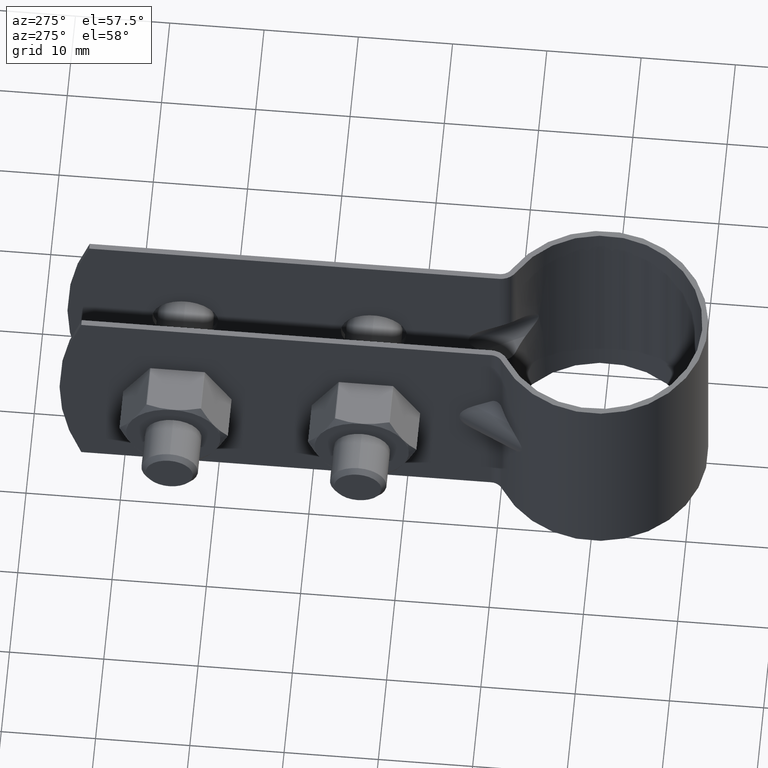
[diagram: clean part render]
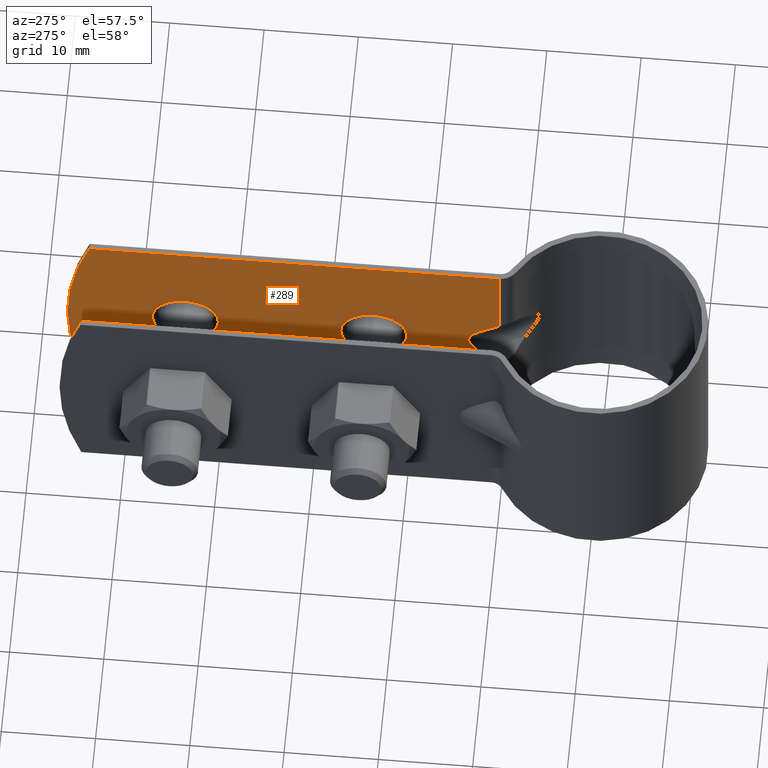
[diagram: same view with one face highlighted and labeled with its STEP entity id]
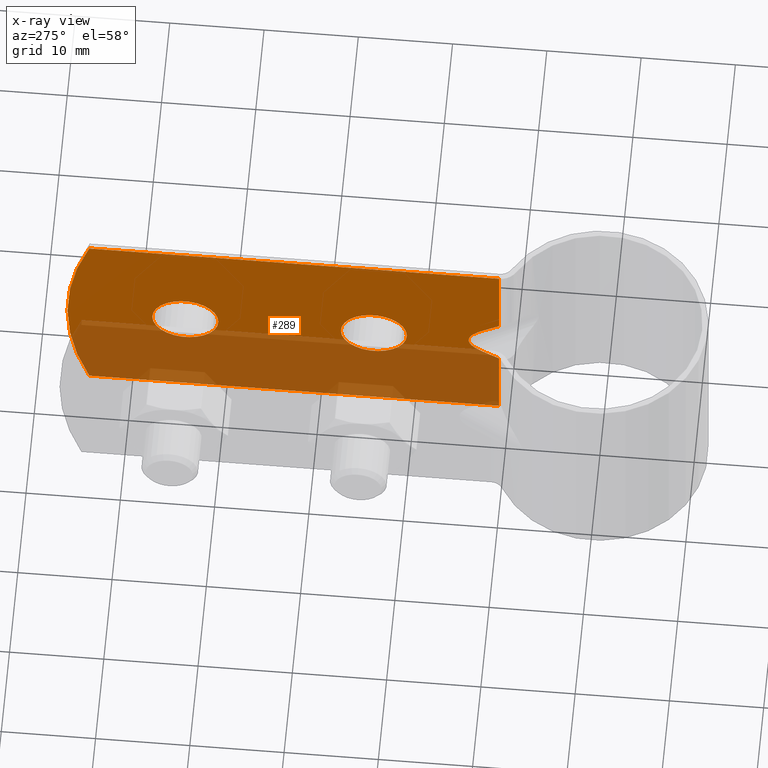
[diagram: x-ray of the same camera — body ghosted, the highlighted face saturated]
A machine part, auxiliary view. The second image highlights one B-rep face of the part: STEP entity #289.
The next image is the same camera in x-ray: the body ghosted, the highlighted face saturated — about 45% of this face is hidden behind the body in this view.
In plain terms, the highlighted planar face has unit normal (1, -0, 0).
Its self-contained STEP definition (entity closure, byte-faithful):
#289 = ADVANCED_FACE( '', ( #422, #423, #424 ), #425, .F. );
#422 = FACE_OUTER_BOUND( '', #654, .T. );
#423 = FACE_BOUND( '', #655, .T. );
#424 = FACE_BOUND( '', #656, .T. );
#425 = PLANE( '', #657 );
#654 = EDGE_LOOP( '', ( #1008, #1009, #1010, #1011, #1012, #1013, #1014, #1015 ) );
#655 = EDGE_LOOP( '', ( #1016 ) );
#656 = EDGE_LOOP( '', ( #1017 ) );
#657 = AXIS2_PLACEMENT_3D( '', #1018, #1019, #1020 );
#1008 = ORIENTED_EDGE( '', *, *, #1694, .T. );
#1009 = ORIENTED_EDGE( '', *, *, #1695, .T. );
#1010 = ORIENTED_EDGE( '', *, *, #1686, .F. );
#1011 = ORIENTED_EDGE( '', *, *, #1630, .F. );
#1012 = ORIENTED_EDGE( '', *, *, #1617, .T. );
#1013 = ORIENTED_EDGE( '', *, *, #1660, .F. );
#1014 = ORIENTED_EDGE( '', *, *, #1662, .F. );
#1015 = ORIENTED_EDGE( '', *, *, #1657, .F. );
#1016 = ORIENTED_EDGE( '', *, *, #1676, .F. );
#1017 = ORIENTED_EDGE( '', *, *, #1680, .F. );
#1018 = CARTESIAN_POINT( '', ( 4.50000000000000, 11.0847868721054, -12.5000000000000 ) );
#1019 = DIRECTION( '', ( 1.00000000000000, -6.06692130572647E-017, 0.000000000000000 ) );
#1020 = DIRECTION( '', ( 6.06692130572647E-017, 1.00000000000000, 0.000000000000000 ) );
#1617 = EDGE_CURVE( '', #1857, #1854, #1858, .T. );
#1630 = EDGE_CURVE( '', #1857, #1863, #1882, .T. );
#1657 = EDGE_CURVE( '', #1928, #1924, #1930, .T. );
#1660 = EDGE_CURVE( '', #1933, #1854, #1935, .T. );
#1662 = EDGE_CURVE( '', #1924, #1933, #1937, .F. );
#1676 = EDGE_CURVE( '', #1962, #1962, #1963, .F. );
#1680 = EDGE_CURVE( '', #1970, #1970, #1971, .F. );
#1686 = EDGE_CURVE( '', #1863, #1977, #1981, .T. );
#1694 = EDGE_CURVE( '', #1928, #1992, #1993, .T. );
#1695 = EDGE_CURVE( '', #1992, #1977, #1994, .T. );
#1854 = VERTEX_POINT( '', #2254 );
#1857 = VERTEX_POINT( '', #2257 );
#1858 = LINE( '', #2258, #2259 );
#1863 = VERTEX_POINT( '', #2265 );
#1882 = LINE( '', #2289, #2290 );
#1924 = VERTEX_POINT( '', #2389 );
#1928 = VERTEX_POINT( '', #2394 );
#1930 = LINE( '', #2396, #2397 );
#1933 = VERTEX_POINT( '', #2400 );
#1935 = LINE( '', #2403, #2404 );
#1937 = ELLIPSE( '', #2429, 7.48914349958990, 3.40000000000000 );
#1962 = VERTEX_POINT( '', #2481 );
#1963 = CIRCLE( '', #2482, 3.50000000000000 );
#1970 = VERTEX_POINT( '', #2489 );
#1971 = CIRCLE( '', #2490, 3.50000000000000 );
#1977 = VERTEX_POINT( '', #2497 );
#1981 = CIRCLE( '', #2502, 35.0000000000000 );
#1992 = VERTEX_POINT( '', #2519 );
#1993 = LINE( '', #2520, #2521 );
#1994 = LINE( '', #2522, #2523 );
#2254 = CARTESIAN_POINT( '', ( 4.50000000000000, 11.0847868721054, -3.16664983038421 ) );
#2257 = CARTESIAN_POINT( '', ( 4.50000000000000, 11.0847868721054, -12.5000000000000 ) );
#2258 = CARTESIAN_POINT( '', ( 4.50000000000000, 11.0847868721054, -12.5000000000000 ) );
#2259 = VECTOR( '', #2985, 1000.00000000000 );
#2265 = CARTESIAN_POINT( '', ( 4.50000000000000, 54.5645582907869, -12.5000000000000 ) );
#2289 = CARTESIAN_POINT( '', ( 4.50000000000000, 11.0847868721054, -12.5000000000000 ) );
#2290 = VECTOR( '', #3010, 1000.00000000000 );
#2389 = CARTESIAN_POINT( '', ( 4.50000000000000, 12.9610275233696, 1.95015988359351 ) );
#2394 = CARTESIAN_POINT( '', ( 4.50000000000000, 11.0847868721054, 3.16664983038413 ) );
#2396 = CARTESIAN_POINT( '', ( 4.50000000000000, 6.53016390564073, 6.11971080707302 ) );
#2397 = VECTOR( '', #3059, 1000.00000000000 );
#2400 = CARTESIAN_POINT( '', ( 4.50000000000000, 12.9610275233696, -1.95015988359362 ) );
#2403 = CARTESIAN_POINT( '', ( 4.50000000000000, 3.71900632928164, -7.94236875246021 ) );
#2404 = VECTOR( '', #3064, 1000.00000000000 );
#2429 = AXIS2_PLACEMENT_3D( '', #3065, #3066, #3067 );
#2481 = CARTESIAN_POINT( '', ( 4.50000000000000, 27.8728162142319, -8.67361737988404E-016 ) );
#2482 = AXIS2_PLACEMENT_3D( '', #3096, #3097, #3098 );
#2489 = CARTESIAN_POINT( '', ( 4.50000000000000, 47.8728162142319, -8.67361737988404E-016 ) );
#2490 = AXIS2_PLACEMENT_3D( '', #3108, #3109, #3110 );
#2497 = CARTESIAN_POINT( '', ( 4.50000000000000, 54.5645582907869, 12.5000000000000 ) );
#2502 = AXIS2_PLACEMENT_3D( '', #3122, #3123, #3124 );
#2519 = CARTESIAN_POINT( '', ( 4.50000000000000, 11.0847868721054, 12.5000000000000 ) );
#2520 = CARTESIAN_POINT( '', ( 4.50000000000000, 11.0847868721054, -12.5000000000000 ) );
#2521 = VECTOR( '', #3134, 1000.00000000000 );
#2522 = CARTESIAN_POINT( '', ( 4.50000000000000, 11.0847868721054, 12.5000000000000 ) );
#2523 = VECTOR( '', #3135, 1000.00000000000 );
#2985 = DIRECTION( '', ( 0.000000000000000, 0.000000000000000, 1.00000000000000 ) );
#3010 = DIRECTION( '', ( 6.06692130572647E-017, 1.00000000000000, 0.000000000000000 ) );
#3059 = DIRECTION( '', ( -5.09056978337517E-017, 0.839069690679894, -0.544023946331728 ) );
#3064 = DIRECTION( '', ( 5.09056978337517E-017, -0.839069690679894, -0.544023946331728 ) );
#3065 = CARTESIAN_POINT( '', ( 4.50000000000000, 6.82628031570696, -5.57303920849115E-014 ) );
#3066 = DIRECTION( '', ( 1.00000000000000, 6.06692130572647E-017, 0.000000000000000 ) );
#3067 = DIRECTION( '', ( -6.06692130572647E-017, 1.00000000000000, 9.65675133376009E-016 ) );
#3096 = CARTESIAN_POINT( '', ( 4.50000000000000, 24.3728162142319, -8.67361737988404E-016 ) );
#3097 = DIRECTION( '', ( 1.00000000000000, -6.06692130572647E-017, 0.000000000000000 ) );
#3098 = DIRECTION( '', ( 6.06692130572647E-017, 1.00000000000000, 0.000000000000000 ) );
#3108 = CARTESIAN_POINT( '', ( 4.50000000000000, 44.3728162142319, -8.67361737988404E-016 ) );
#3109 = DIRECTION( '', ( 1.00000000000000, -6.06692130572647E-017, 0.000000000000000 ) );
#3110 = DIRECTION( '', ( 6.06692130572647E-017, 1.00000000000000, 0.000000000000000 ) );
#3122 = CARTESIAN_POINT( '', ( 4.50000000000000, 21.8728162142319, 0.000000000000000 ) );
#3123 = DIRECTION( '', ( 1.00000000000000, -6.06692130572647E-017, 0.000000000000000 ) );
#3124 = DIRECTION( '', ( 6.06692130572647E-017, 1.00000000000000, 0.000000000000000 ) );
#3134 = DIRECTION( '', ( 0.000000000000000, 0.000000000000000, 1.00000000000000 ) );
#3135 = DIRECTION( '', ( 6.06692130572647E-017, 1.00000000000000, 0.000000000000000 ) );